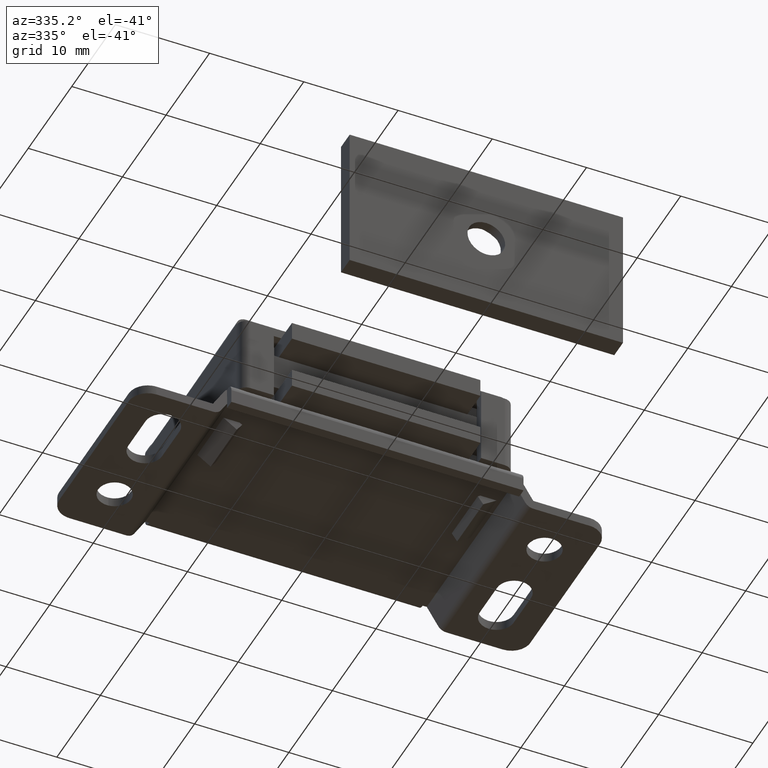
[diagram: clean part render]
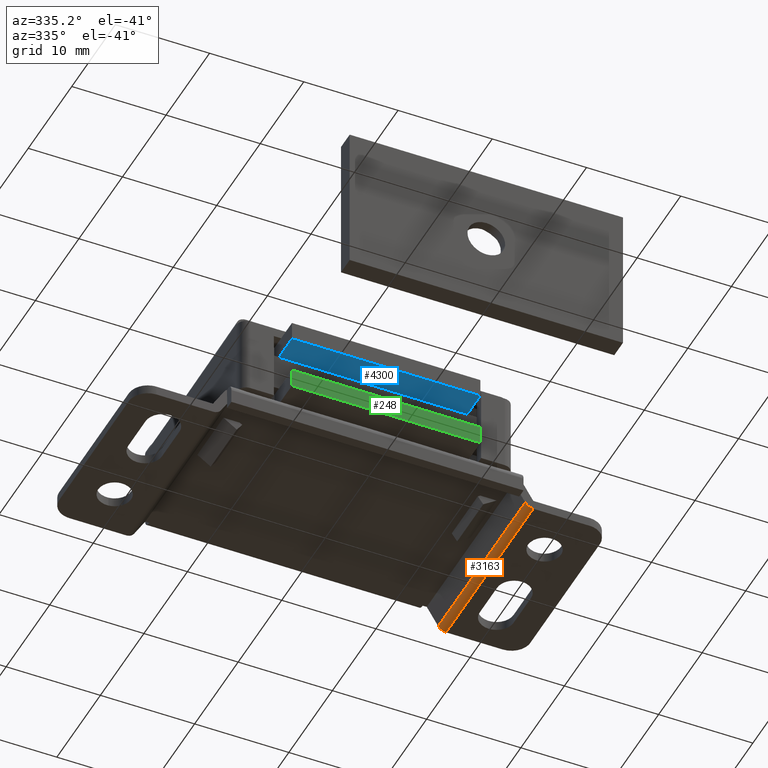
[diagram: same view with three faces highlighted in distinct colors, each labeled with its STEP entity id]
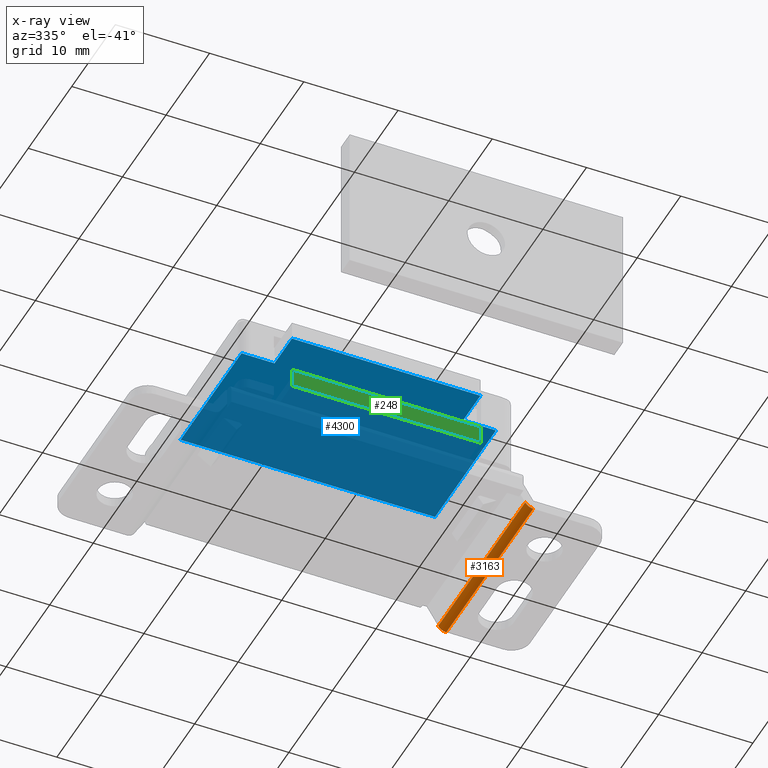
[diagram: x-ray of the same camera — body ghosted, the three highlighted faces saturated]
A machine part, auxiliary view with three faces highlighted in distinct colors.
The next image is the same camera in x-ray (body ghosted, the three faces saturated) — at least one of them is partly hidden behind the body in this view.
Their STEP definitions:

[orange] entity #3163 — the highlighted face is a freeform B-spline surface patch.
#3103=CARTESIAN_POINT('',(16.138047016975339,-21.500000000000000,0.493006303965930));
#3104=CARTESIAN_POINT('',(16.138047016975339,-0.487499999999997,0.493006303965930));
#3105=CARTESIAN_POINT('',(16.444836970899232,-21.500000000000007,-0.028573214343427));
#3106=CARTESIAN_POINT('',(16.444836970899232,-0.487499999999997,-0.028573214343427));
#3107=CARTESIAN_POINT('',(17.049219383616506,-21.499999999999996,0.001212167079203));
#3108=CARTESIAN_POINT('',(17.049219383616506,-0.487499999999997,0.001212167079203));
#3116=(BOUNDED_SURFACE()B_SPLINE_SURFACE(1,2,((#3103,#3105,#3107),(#3104,#3106,#3108)),.UNSPECIFIED.,.F.,.F.,.U.)B_SPLINE_SURFACE_WITH_KNOTS((2,2),(3,3),(0.0,21.012500000000010),(0.0,0.989287606386747),.UNSPECIFIED.)GEOMETRIC_REPRESENTATION_ITEM()RATIONAL_B_SPLINE_SURFACE(((1.0,0.854218740916316,0.996876667542520),(1.0,0.854218740916316,0.996876667542520)))REPRESENTATION_ITEM('')SURFACE());
#3117=CARTESIAN_POINT('',(16.142504135867000,-21.0,0.485503773536603));
#3118=VERTEX_POINT('',#3117);
#3119=CARTESIAN_POINT('',(16.999996778957851,-21.0,0.0));
#3120=VERTEX_POINT('',#3119);
#3121=CARTESIAN_POINT('',(16.142504135867000,-21.0,0.485503773536605));
#3122=CARTESIAN_POINT('',(16.433806762695319,-21.000000000000004,0.0));
#3123=CARTESIAN_POINT('',(16.999996778957851,-21.0,0.0));
#3131=(BOUNDED_CURVE()B_SPLINE_CURVE(2,(#3121,#3122,#3123),.UNSPECIFIED.,.F.,.U.)CURVE()GEOMETRIC_REPRESENTATION_ITEM()QUASI_UNIFORM_CURVE()RATIONAL_B_SPLINE_CURVE((1.0,0.870200042077508,1.0))REPRESENTATION_ITEM(''));
#3132=EDGE_CURVE('',#3118,#3120,#3131,.T.);
#3133=ORIENTED_EDGE('',*,*,#3132,.F.);
#3134=CARTESIAN_POINT('',(16.142504135867000,-1.0,0.485503773536603));
#3135=VERTEX_POINT('',#3134);
#3136=CARTESIAN_POINT('',(16.142504135867000,-1.0,0.485503773536603));
#3137=CARTESIAN_POINT('',(16.142504135867000,-21.0,0.485503773536603));
#3138=QUASI_UNIFORM_CURVE('',1,(#3136,#3137),.UNSPECIFIED.,.F.,.U.);
#3139=EDGE_CURVE('',#3135,#3118,#3138,.T.);
#3140=ORIENTED_EDGE('',*,*,#3139,.F.);
#3141=CARTESIAN_POINT('',(16.999996778957851,-1.0,0.0));
#3142=VERTEX_POINT('',#3141);
#3143=CARTESIAN_POINT('',(16.999996778957851,-1.0,0.0));
#3144=CARTESIAN_POINT('',(16.433806762695319,-1.0,0.0));
#3145=CARTESIAN_POINT('',(16.142504135867000,-1.0,0.485503773536605));
#3153=(BOUNDED_CURVE()B_SPLINE_CURVE(2,(#3143,#3144,#3145),.UNSPECIFIED.,.F.,.U.)CURVE()GEOMETRIC_REPRESENTATION_ITEM()QUASI_UNIFORM_CURVE()RATIONAL_B_SPLINE_CURVE((1.0,0.870200042077509,1.0))REPRESENTATION_ITEM(''));
#3154=EDGE_CURVE('',#3142,#3135,#3153,.T.);
#3155=ORIENTED_EDGE('',*,*,#3154,.F.);
#3156=CARTESIAN_POINT('',(16.999996778957851,-21.0,0.0));
#3157=CARTESIAN_POINT('',(16.999996778957851,-1.0,0.0));
#3158=QUASI_UNIFORM_CURVE('',1,(#3156,#3157),.UNSPECIFIED.,.F.,.U.);
#3159=EDGE_CURVE('',#3120,#3142,#3158,.T.);
#3160=ORIENTED_EDGE('',*,*,#3159,.F.);
#3161=EDGE_LOOP('',(#3133,#3140,#3155,#3160));
#3162=FACE_OUTER_BOUND('',#3161,.T.);
#3163=ADVANCED_FACE('',(#3162),#3116,.T.);

[blue] entity #4300 — the highlighted face is a freeform B-spline surface patch.
#4237=CARTESIAN_POINT('',(-14.848649947668759,-5.100900034887492,9.500000000000000));
#4238=CARTESIAN_POINT('',(14.848650671865190,-5.100900034887492,9.500000000000000));
#4239=CARTESIAN_POINT('',(-14.848649947668759,-24.899100447910129,9.500000000000000));
#4240=CARTESIAN_POINT('',(14.848650671865190,-24.899100447910129,9.500000000000000));
#4241=B_SPLINE_SURFACE_WITH_KNOTS('',1,1,((#4237,#4239),(#4238,#4240)),.UNSPECIFIED.,.F.,.F.,.U.,(2,2),(2,2),(0.0,29.697300619533959),(0.0,19.798200413022641),.UNSPECIFIED.);
#4242=CARTESIAN_POINT('',(10.0,-20.0,9.500000000000000));
#4243=VERTEX_POINT('',#4242);
#4244=CARTESIAN_POINT('',(10.0,-24.0,9.500000000000000));
#4245=VERTEX_POINT('',#4244);
#4246=CARTESIAN_POINT('',(10.0,-20.0,9.500000000000000));
#4247=CARTESIAN_POINT('',(10.0,-24.0,9.500000000000000));
#4248=QUASI_UNIFORM_CURVE('',1,(#4246,#4247),.UNSPECIFIED.,.F.,.U.);
#4249=EDGE_CURVE('',#4243,#4245,#4248,.T.);
#4250=ORIENTED_EDGE('',*,*,#4249,.T.);
#4251=CARTESIAN_POINT('',(-10.0,-24.0,9.500000000000000));
#4252=VERTEX_POINT('',#4251);
#4253=CARTESIAN_POINT('',(10.0,-24.0,9.500000000000000));
#4254=CARTESIAN_POINT('',(-10.0,-24.0,9.500000000000000));
#4255=QUASI_UNIFORM_CURVE('',1,(#4253,#4254),.UNSPECIFIED.,.F.,.U.);
#4256=EDGE_CURVE('',#4245,#4252,#4255,.T.);
#4257=ORIENTED_EDGE('',*,*,#4256,.T.);
#4258=CARTESIAN_POINT('',(-10.0,-20.0,9.500000000000000));
#4259=VERTEX_POINT('',#4258);
#4260=CARTESIAN_POINT('',(-10.0,-24.0,9.500000000000000));
#4261=CARTESIAN_POINT('',(-10.0,-20.0,9.500000000000000));
#4262=QUASI_UNIFORM_CURVE('',1,(#4260,#4261),.UNSPECIFIED.,.F.,.U.);
#4263=EDGE_CURVE('',#4252,#4259,#4262,.T.);
#4264=ORIENTED_EDGE('',*,*,#4263,.T.);
#4265=CARTESIAN_POINT('',(-13.500000000000000,-20.0,9.500000000000000));
#4266=VERTEX_POINT('',#4265);
#4267=CARTESIAN_POINT('',(-10.0,-20.0,9.500000000000000));
#4268=CARTESIAN_POINT('',(-13.500000000000000,-20.0,9.500000000000000));
#4269=QUASI_UNIFORM_CURVE('',1,(#4267,#4268),.UNSPECIFIED.,.F.,.U.);
#4270=EDGE_CURVE('',#4259,#4266,#4269,.T.);
#4271=ORIENTED_EDGE('',*,*,#4270,.T.);
#4272=CARTESIAN_POINT('',(-13.500000000000000,-6.0,9.500000000000000));
#4273=VERTEX_POINT('',#4272);
#4274=CARTESIAN_POINT('',(-13.500000000000000,-20.0,9.500000000000000));
#4275=CARTESIAN_POINT('',(-13.500000000000000,-6.0,9.500000000000000));
#4276=QUASI_UNIFORM_CURVE('',1,(#4274,#4275),.UNSPECIFIED.,.F.,.U.);
#4277=EDGE_CURVE('',#4266,#4273,#4276,.T.);
#4278=ORIENTED_EDGE('',*,*,#4277,.T.);
#4279=CARTESIAN_POINT('',(13.500000000000000,-6.0,9.500000000000000));
#4280=VERTEX_POINT('',#4279);
#4281=CARTESIAN_POINT('',(-13.500000000000000,-6.0,9.500000000000000));
#4282=CARTESIAN_POINT('',(13.500000000000000,-6.0,9.500000000000000));
#4283=QUASI_UNIFORM_CURVE('',1,(#4281,#4282),.UNSPECIFIED.,.F.,.U.);
#4284=EDGE_CURVE('',#4273,#4280,#4283,.T.);
#4285=ORIENTED_EDGE('',*,*,#4284,.T.);
#4286=CARTESIAN_POINT('',(13.500000000000000,-20.0,9.500000000000000));
#4287=VERTEX_POINT('',#4286);
#4288=CARTESIAN_POINT('',(13.500000000000000,-6.0,9.500000000000000));
#4289=CARTESIAN_POINT('',(13.500000000000000,-20.0,9.500000000000000));
#4290=QUASI_UNIFORM_CURVE('',1,(#4288,#4289),.UNSPECIFIED.,.F.,.U.);
#4291=EDGE_CURVE('',#4280,#4287,#4290,.T.);
#4292=ORIENTED_EDGE('',*,*,#4291,.T.);
#4293=CARTESIAN_POINT('',(13.500000000000000,-20.0,9.500000000000000));
#4294=CARTESIAN_POINT('',(10.0,-20.0,9.500000000000000));
#4295=QUASI_UNIFORM_CURVE('',1,(#4293,#4294),.UNSPECIFIED.,.F.,.U.);
#4296=EDGE_CURVE('',#4287,#4243,#4295,.T.);
#4297=ORIENTED_EDGE('',*,*,#4296,.T.);
#4298=EDGE_LOOP('',(#4250,#4257,#4264,#4271,#4278,#4285,#4292,#4297));
#4299=FACE_OUTER_BOUND('',#4298,.T.);
#4300=ADVANCED_FACE('',(#4299),#4241,.T.);

[green] entity #248 — the highlighted face is a freeform B-spline surface patch.
#12=CARTESIAN_POINT('',(10.0,-24.0,5.499999999999840));
#13=VERTEX_POINT('',#12);
#54=CARTESIAN_POINT('',(-10.0,-24.0,5.499999999999840));
#55=VERTEX_POINT('',#54);
#61=CARTESIAN_POINT('',(10.0,-24.0,5.499999999999840));
#62=CARTESIAN_POINT('',(-10.0,-24.0,5.499999999999840));
#63=QUASI_UNIFORM_CURVE('',1,(#61,#62),.UNSPECIFIED.,.F.,.U.);
#64=EDGE_CURVE('',#13,#55,#63,.T.);
#76=CARTESIAN_POINT('',(10.0,-24.0,3.500000000000000));
#77=VERTEX_POINT('',#76);
#83=CARTESIAN_POINT('',(-10.0,-24.0,3.500000000000000));
#84=VERTEX_POINT('',#83);
#85=CARTESIAN_POINT('',(10.0,-24.0,3.500000000000000));
#86=CARTESIAN_POINT('',(-10.0,-24.0,3.500000000000000));
#87=QUASI_UNIFORM_CURVE('',1,(#85,#86),.UNSPECIFIED.,.F.,.U.);
#88=EDGE_CURVE('',#77,#84,#87,.T.);
#225=CARTESIAN_POINT('',(-10.0,-24.0,3.500000000000000));
#226=CARTESIAN_POINT('',(-10.0,-24.0,5.499999999999840));
#227=QUASI_UNIFORM_CURVE('',1,(#225,#226),.UNSPECIFIED.,.F.,.U.);
#228=EDGE_CURVE('',#84,#55,#227,.T.);
#233=CARTESIAN_POINT('',(-10.998999961236120,-24.0,3.400100003876394));
#234=CARTESIAN_POINT('',(-10.998999961236120,-24.0,5.599900049767626));
#235=CARTESIAN_POINT('',(10.999000497677921,-24.0,3.400100003876394));
#236=CARTESIAN_POINT('',(10.999000497677921,-24.0,5.599900049767626));
#237=B_SPLINE_SURFACE_WITH_KNOTS('',1,1,((#233,#235),(#234,#236)),.UNSPECIFIED.,.F.,.F.,.U.,(2,2),(2,2),(0.0,2.199800045891232),(0.0,21.998000458914039),.UNSPECIFIED.);
#238=ORIENTED_EDGE('',*,*,#64,.T.);
#239=ORIENTED_EDGE('',*,*,#228,.F.);
#240=ORIENTED_EDGE('',*,*,#88,.F.);
#241=CARTESIAN_POINT('',(10.0,-24.0,3.500000000000000));
#242=CARTESIAN_POINT('',(10.0,-24.0,5.499999999999840));
#243=QUASI_UNIFORM_CURVE('',1,(#241,#242),.UNSPECIFIED.,.F.,.U.);
#244=EDGE_CURVE('',#77,#13,#243,.T.);
#245=ORIENTED_EDGE('',*,*,#244,.T.);
#246=EDGE_LOOP('',(#238,#239,#240,#245));
#247=FACE_OUTER_BOUND('',#246,.T.);
#248=ADVANCED_FACE('',(#247),#237,.F.);